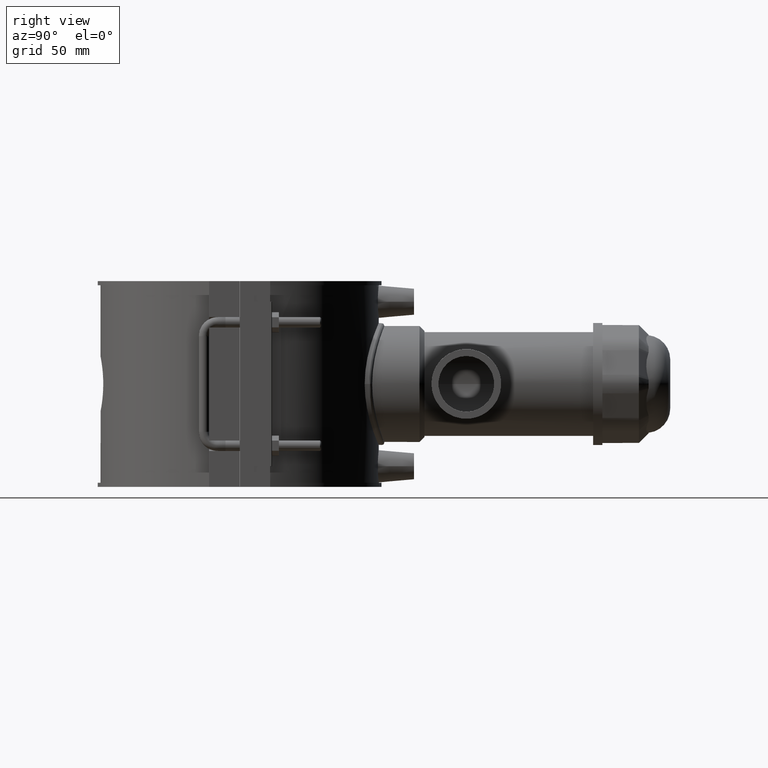
[diagram: clean part render]
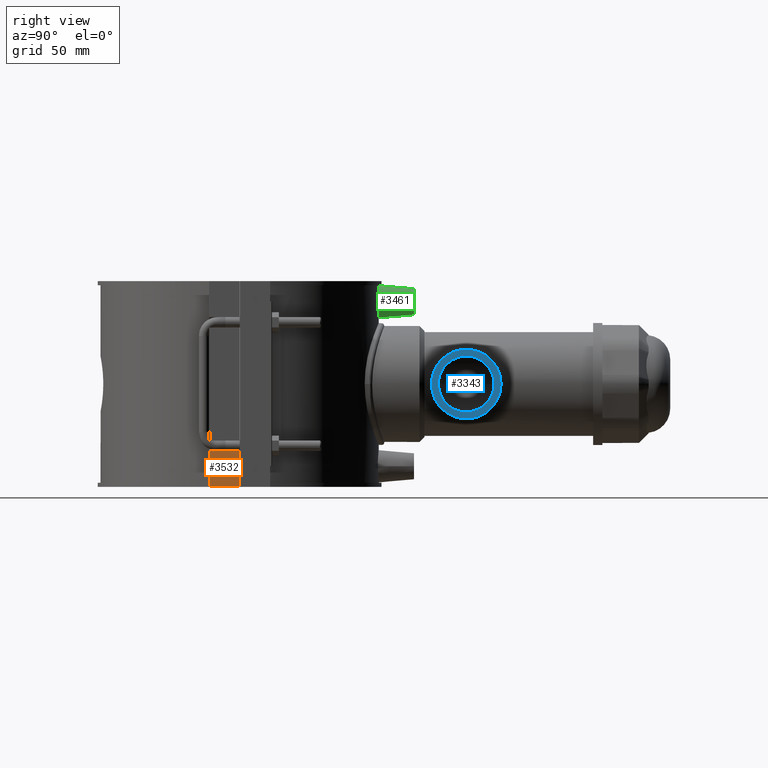
[diagram: same view with three faces highlighted in distinct colors, each labeled with its STEP entity id]
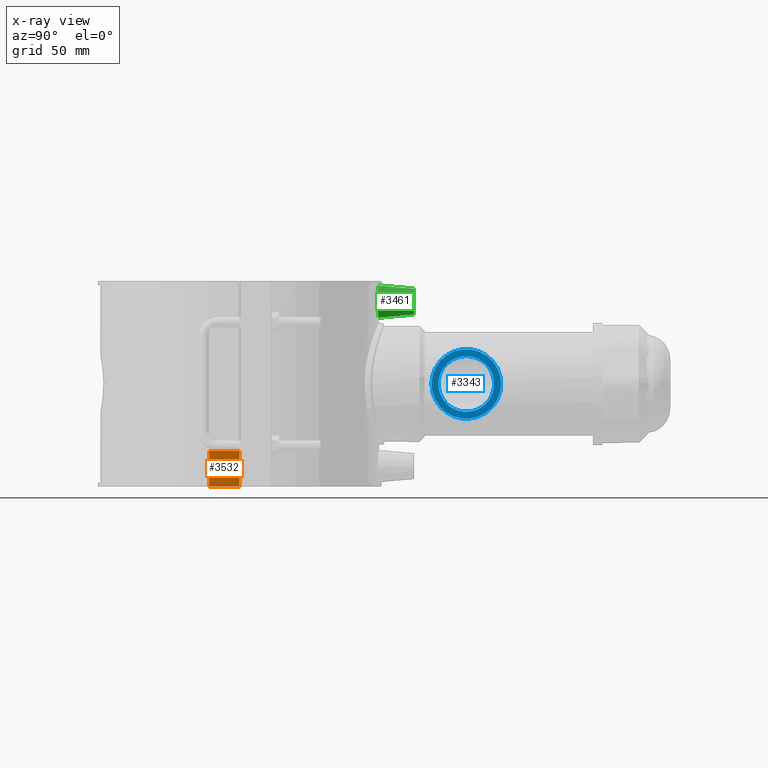
[diagram: x-ray of the same camera — body ghosted, the three highlighted faces saturated]
A machine part, right view with three faces highlighted in distinct colors.
The next image is the same camera in x-ray (body ghosted, the three faces saturated) — at least one of them is partly hidden behind the body in this view.
Their STEP definitions:

[orange] entity #3532 — the highlighted planar face has unit normal (1, 0, 0).
#146=LINE('',#6350,#433);
#305=LINE('',#7262,#592);
#311=LINE('',#7273,#598);
#317=LINE('',#7284,#604);
#433=VECTOR('',#4217,20.6);
#592=VECTOR('',#4676,17.45);
#598=VECTOR('',#4686,20.6);
#604=VECTOR('',#4696,17.45);
#1016=FACE_OUTER_BOUND('',#1276,.T.);
#1276=EDGE_LOOP('',(#3128,#3129,#3130,#3131));
#1563=VERTEX_POINT('',#6347);
#1564=VERTEX_POINT('',#6349);
#1721=VERTEX_POINT('',#7261);
#1724=VERTEX_POINT('',#7272);
#1956=EDGE_CURVE('',#1563,#1564,#146,.T.);
#2195=EDGE_CURVE('',#1721,#1564,#305,.T.);
#2201=EDGE_CURVE('',#1724,#1721,#311,.T.);
#2207=EDGE_CURVE('',#1724,#1563,#317,.T.);
#3128=ORIENTED_EDGE('',*,*,#2195,.T.);
#3129=ORIENTED_EDGE('',*,*,#1956,.F.);
#3130=ORIENTED_EDGE('',*,*,#2207,.F.);
#3131=ORIENTED_EDGE('',*,*,#2201,.T.);
#3327=PLANE('',#3831);
#3532=ADVANCED_FACE('',(#1016),#3327,.T.);
#3831=AXIS2_PLACEMENT_3D('',#7283,#4694,#4695);
#4217=DIRECTION('',(0.,0.,1.));
#4676=DIRECTION('',(0.,-1.,0.));
#4686=DIRECTION('',(0.,0.,1.));
#4694=DIRECTION('center_axis',(1.,0.,0.));
#4695=DIRECTION('ref_axis',(0.,1.,0.));
#4696=DIRECTION('',(0.,-1.,0.));
#6347=CARTESIAN_POINT('',(90.,-17.5,-59.));
#6349=CARTESIAN_POINT('',(90.,-17.5,-38.4));
#6350=CARTESIAN_POINT('',(90.,-17.5,0.));
#7261=CARTESIAN_POINT('',(90.,-0.0500000000000078,-38.4));
#7262=CARTESIAN_POINT('',(90.,-17.5,-38.4));
#7272=CARTESIAN_POINT('',(90.,-0.0500000000000078,-59.));
#7273=CARTESIAN_POINT('',(90.,-0.0500000000000078,-29.5));
#7283=CARTESIAN_POINT('Origin',(90.,-17.5,0.));
#7284=CARTESIAN_POINT('',(90.,-17.5,-59.));

[blue] entity #3343 — the highlighted planar face has unit normal (1, 0, 0).
#635=FACE_BOUND('',#1040,.T.);
#827=FACE_OUTER_BOUND('',#1039,.T.);
#1039=EDGE_LOOP('',(#2232));
#1040=EDGE_LOOP('',(#2233));
#1295=CIRCLE('',#3553,20.);
#1296=CIRCLE('',#3555,16.);
#1413=VERTEX_POINT('',#4941);
#1415=VERTEX_POINT('',#5011);
#1738=EDGE_CURVE('',#1413,#1413,#1295,.T.);
#1740=EDGE_CURVE('',#1415,#1415,#1296,.T.);
#2232=ORIENTED_EDGE('',*,*,#1738,.T.);
#2233=ORIENTED_EDGE('',*,*,#1740,.F.);
#3221=PLANE('',#3556);
#3343=ADVANCED_FACE('',(#827,#635),#3221,.T.);
#3553=AXIS2_PLACEMENT_3D('',#4942,#3862,#3863);
#3555=AXIS2_PLACEMENT_3D('',#5012,#3866,#3867);
#3556=AXIS2_PLACEMENT_3D('',#5013,#3868,#3869);
#3862=DIRECTION('center_axis',(1.,0.,0.));
#3863=DIRECTION('ref_axis',(0.,0.,-1.));
#3866=DIRECTION('center_axis',(1.,0.,0.));
#3867=DIRECTION('ref_axis',(0.,0.,-1.));
#3868=DIRECTION('center_axis',(1.,0.,0.));
#3869=DIRECTION('ref_axis',(0.,0.,-1.));
#4941=CARTESIAN_POINT('',(142.,150.,0.));
#4942=CARTESIAN_POINT('Origin',(142.,130.,0.));
#5011=CARTESIAN_POINT('',(142.,130.,-16.));
#5012=CARTESIAN_POINT('Origin',(142.,130.,0.));
#5013=CARTESIAN_POINT('Origin',(142.,146.,0.));

[green] entity #3461 — the highlighted conical surface has half-angle 5 deg.
#624=CONICAL_SURFACE('',#3723,7.5,5.);
#658=FACE_BOUND('',#1181,.T.);
#743=B_SPLINE_CURVE_WITH_KNOTS('',3,(#6312,#6313,#6314,#6315,#6316,#6317,
#6318,#6319,#6320,#6321,#6322,#6323,#6324,#6325,#6326,#6327,#6328,#6329,
#6330,#6331,#6332,#6333,#6334,#6335,#6336,#6337,#6338,#6339,#6340,#6341,
#6342,#6343,#6344,#6345),.UNSPECIFIED.,.T.,.F.,(4,2,2,2,2,2,2,2,2,2,2,2,
2,2,2,2,4),(0.,0.350537332806521,0.701074665613042,1.05119542431548,1.40131618301793,
1.75143694172037,2.10155770042281,2.45209503322933,2.80263236603585,3.15316969884237,
3.50370703164889,3.85382779035134,4.20394854905378,4.55406930775622,4.90419006645866,
5.25472739926518,5.6052647320717),.UNSPECIFIED.);
#945=FACE_OUTER_BOUND('',#1180,.T.);
#1180=EDGE_LOOP('',(#2811));
#1181=EDGE_LOOP('',(#2812));
#1366=CIRCLE('',#3724,7.5);
#1562=VERTEX_POINT('',#6311);
#1646=VERTEX_POINT('',#6780);
#1954=EDGE_CURVE('',#1562,#1562,#743,.T.);
#2072=EDGE_CURVE('',#1646,#1646,#1366,.T.);
#2811=ORIENTED_EDGE('',*,*,#2072,.F.);
#2812=ORIENTED_EDGE('',*,*,#1954,.F.);
#3461=ADVANCED_FACE('',(#945,#658),#624,.T.);
#3723=AXIS2_PLACEMENT_3D('',#6779,#4398,#4399);
#3724=AXIS2_PLACEMENT_3D('',#6781,#4400,#4401);
#4398=DIRECTION('center_axis',(0.,-1.,0.));
#4399=DIRECTION('ref_axis',(1.,0.,0.));
#4400=DIRECTION('center_axis',(0.,1.,0.));
#4401=DIRECTION('ref_axis',(1.,0.,0.));
#6311=CARTESIAN_POINT('',(9.31499881409953,79.2544686253925,47.2));
#6312=CARTESIAN_POINT('Ctrl Pts',(-9.31499881409953,79.2544686253925,47.2));
#6313=CARTESIAN_POINT('Ctrl Pts',(-9.31499881409953,79.2544686253925,46.0315422239783));
#6314=CARTESIAN_POINT('Ctrl Pts',(-9.07927705901611,79.2832740529761,44.7866598084205));
#6315=CARTESIAN_POINT('Ctrl Pts',(-8.12401078667296,79.3868456523369,42.5000799802729));
#6316=CARTESIAN_POINT('Ctrl Pts',(-7.40456259486849,79.4600721276288,41.4582728460423));
#6317=CARTESIAN_POINT('Ctrl Pts',(-5.74914170471667,79.5969618701621,39.8164661855734));
#6318=CARTESIAN_POINT('Ctrl Pts',(-4.7028960366599,79.6695522189689,39.1061335180734));
#6319=CARTESIAN_POINT('Ctrl Pts',(-2.41189717008598,79.7717840700412,38.1642510778672));
#6320=CARTESIAN_POINT('Ctrl Pts',(-1.16706919567481,79.8,37.9327289967764));
#6321=CARTESIAN_POINT('Ctrl Pts',(1.16706919567481,79.8,37.9327289967763));
#6322=CARTESIAN_POINT('Ctrl Pts',(2.41189717008597,79.7717840700413,38.1642510778672));
#6323=CARTESIAN_POINT('Ctrl Pts',(4.70289603665989,79.6695522189689,39.1061335180735));
#6324=CARTESIAN_POINT('Ctrl Pts',(5.74914170471667,79.5969618701621,39.8164661855734));
#6325=CARTESIAN_POINT('Ctrl Pts',(7.40456259486849,79.4600721276288,41.4582728460423));
#6326=CARTESIAN_POINT('Ctrl Pts',(8.12401078667296,79.3868456523369,42.5000799802729));
#6327=CARTESIAN_POINT('Ctrl Pts',(9.07927705901611,79.2832740529761,44.7866598084205));
#6328=CARTESIAN_POINT('Ctrl Pts',(9.31499881409953,79.2544686253925,46.0315422239783));
#6329=CARTESIAN_POINT('Ctrl Pts',(9.31499881409953,79.2544686253925,48.3684577760217));
#6330=CARTESIAN_POINT('Ctrl Pts',(9.07927705901611,79.2832740529761,49.6133401915795));
#6331=CARTESIAN_POINT('Ctrl Pts',(8.12401078667296,79.3868456523369,51.8999200197271));
#6332=CARTESIAN_POINT('Ctrl Pts',(7.40456259486848,79.4600721276288,52.9417271539577));
#6333=CARTESIAN_POINT('Ctrl Pts',(5.74914170471666,79.5969618701621,54.5835338144267));
#6334=CARTESIAN_POINT('Ctrl Pts',(4.70289603665989,79.6695522189689,55.2938664819266));
#6335=CARTESIAN_POINT('Ctrl Pts',(2.41189717008597,79.7717840700413,56.2357489221328));
#6336=CARTESIAN_POINT('Ctrl Pts',(1.16706919567481,79.8,56.4672710032237));
#6337=CARTESIAN_POINT('Ctrl Pts',(-1.16706919567481,79.8,56.4672710032237));
#6338=CARTESIAN_POINT('Ctrl Pts',(-2.41189717008598,79.7717840700413,56.2357489221328));
#6339=CARTESIAN_POINT('Ctrl Pts',(-4.7028960366599,79.6695522189689,55.2938664819266));
#6340=CARTESIAN_POINT('Ctrl Pts',(-5.74914170471667,79.5969618701621,54.5835338144267));
#6341=CARTESIAN_POINT('Ctrl Pts',(-7.40456259486849,79.4600721276288,52.9417271539577));
#6342=CARTESIAN_POINT('Ctrl Pts',(-8.12401078667296,79.3868456523369,51.8999200197271));
#6343=CARTESIAN_POINT('Ctrl Pts',(-9.07927705901611,79.2832740529761,49.6133401915795));
#6344=CARTESIAN_POINT('Ctrl Pts',(-9.31499881409953,79.2544686253925,48.3684577760217));
#6345=CARTESIAN_POINT('Ctrl Pts',(-9.31499881409953,79.2544686253925,47.2));
#6779=CARTESIAN_POINT('Origin',(0.,100.,47.2));
#6780=CARTESIAN_POINT('',(-7.5,100.,47.2));
#6781=CARTESIAN_POINT('Origin',(0.,100.,47.2));